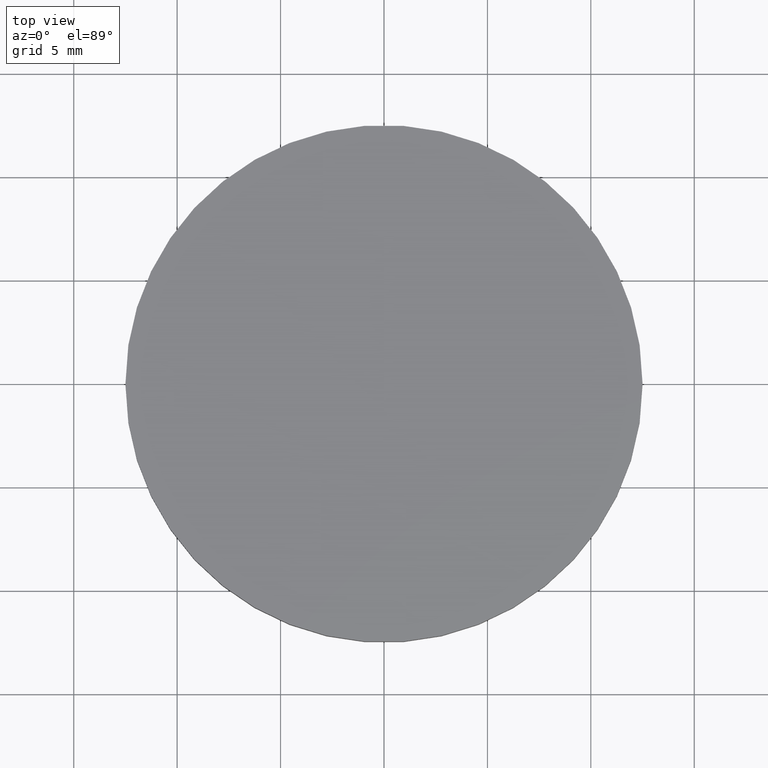
[diagram: clean part render]
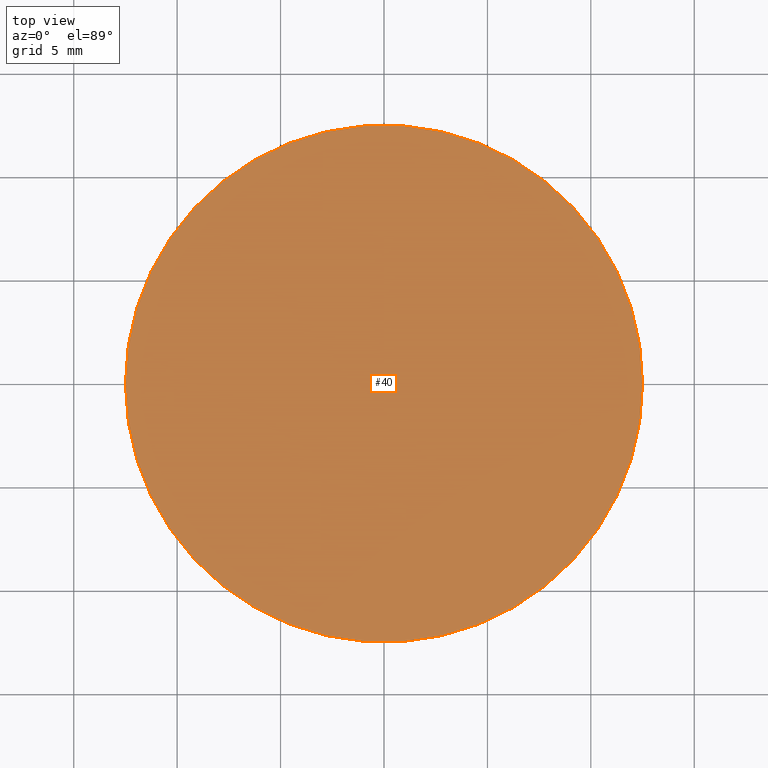
[diagram: same view with one face highlighted and labeled with its STEP entity id]
A machine part, top view. The second image highlights one B-rep face of the part: STEP entity #40.
In plain terms, the highlighted planar face has unit normal (0, 0, 1).
Its self-contained STEP definition (entity closure, byte-faithful):
#4 = AXIS2_PLACEMENT_3D ( 'NONE', #65, #5, #34 ) ;
#5 = DIRECTION ( 'NONE',  ( 0.0000000000000000000, 0.0000000000000000000, 1.000000000000000000 ) ) ;
#20 = DIRECTION ( 'NONE',  ( 1.000000000000000000, 0.0000000000000000000, -0.0000000000000000000 ) ) ;
#24 = DIRECTION ( 'NONE',  ( 0.0000000000000000000, 0.0000000000000000000, 1.000000000000000000 ) ) ;
#27 = CIRCLE ( 'NONE', #4, 12.50000000000000000 ) ;
#33 = VERTEX_POINT ( 'NONE', #83 ) ;
#34 = DIRECTION ( 'NONE',  ( 1.000000000000000000, 0.0000000000000000000, 0.0000000000000000000 ) ) ;
#38 = EDGE_CURVE ( 'NONE', #33, #81, #91, .T. ) ;
#40 = ADVANCED_FACE ( 'NONE', ( #55 ), #63, .T. ) ;
#53 = EDGE_LOOP ( 'NONE', ( #54, #130 ) ) ;
#54 = ORIENTED_EDGE ( 'NONE', *, *, #38, .T. ) ;
#55 = FACE_OUTER_BOUND ( 'NONE', #53, .T. ) ;
#63 = PLANE ( 'NONE',  #66 ) ;
#65 = CARTESIAN_POINT ( 'NONE',  ( 0.0000000000000000000, 0.0000000000000000000, 2.000000000000000000 ) ) ;
#66 = AXIS2_PLACEMENT_3D ( 'NONE', #82, #90, #20 ) ;
#71 = DIRECTION ( 'NONE',  ( 1.000000000000000000, 0.0000000000000000000, 0.0000000000000000000 ) ) ;
#81 = VERTEX_POINT ( 'NONE', #121 ) ;
#82 = CARTESIAN_POINT ( 'NONE',  ( 0.0000000000000000000, 0.0000000000000000000, 2.000000000000000000 ) ) ;
#83 = CARTESIAN_POINT ( 'NONE',  ( -12.50000000000000000, 0.0000000000000000000, 2.000000000000000000 ) ) ;
#90 = DIRECTION ( 'NONE',  ( 0.0000000000000000000, 0.0000000000000000000, 1.000000000000000000 ) ) ;
#91 = CIRCLE ( 'NONE', #95, 12.50000000000000000 ) ;
#95 = AXIS2_PLACEMENT_3D ( 'NONE', #96, #24, #71 ) ;
#96 = CARTESIAN_POINT ( 'NONE',  ( 0.0000000000000000000, 0.0000000000000000000, 2.000000000000000000 ) ) ;
#120 = EDGE_CURVE ( 'NONE', #81, #33, #27, .T. ) ;
#121 = CARTESIAN_POINT ( 'NONE',  ( 12.50000000000000000, 1.530808498934191500E-015, 2.000000000000000000 ) ) ;
#130 = ORIENTED_EDGE ( 'NONE', *, *, #120, .T. ) ;